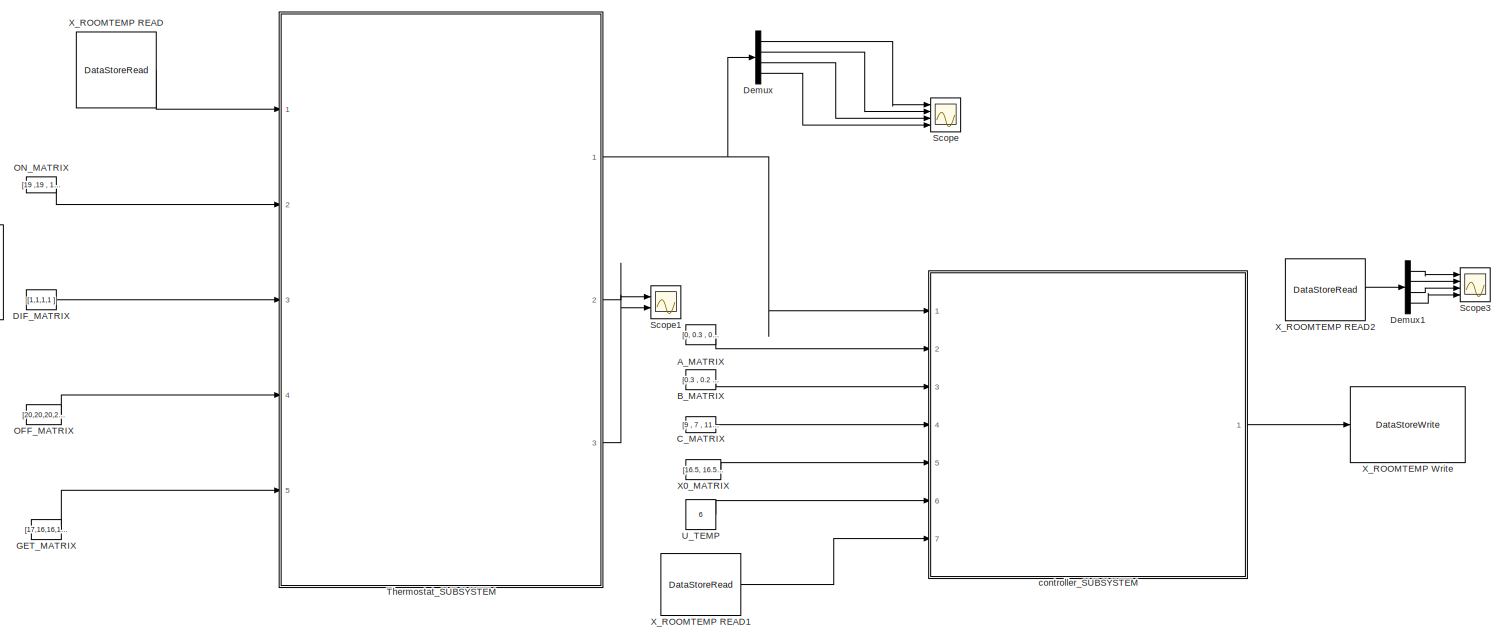
[diagram: root canvas - part 1/2, most of the canvas]
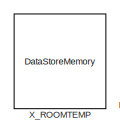
[diagram: root canvas - part 2/2, middle left region]
MODEL slx_b2e7b747065c
KIND model
CONFIG AbsTol = auto
CONFIG EnableMultiTasking = on
CONFIG FixedStep = auto
CONFIG MaxStep = auto
CONFIG MinStep = auto
CONFIG RelTol = 1e-3
CONFIG SampleTimeConstraint = Unconstrained
CONFIG SolverName = FixedStepAuto
CONFIG StartTime = 0.0
CONFIG StopTime = inf
BLOCK [Constant] A_MATRIX
  OutDataTypeStr = int8
  Value = [0, 0.3 , 0.4 , 0.3 ; 0.3 , 0 , 0.5 , 0 ; 0.4 , 0.5 , 0 , 0.3; 0.3 , 0 , 0.3 , 0]
BLOCK [Constant] B_MATRIX
  OutDataTypeStr = int8
  Value = [0.3 , 0.2 , 0.5 , 0.4 ]
BLOCK [Constant] C_MATRIX
  OutDataTypeStr = int8
  Value = [9 , 7 , 11 , 7 ]
BLOCK [Constant] DIF_MATRIX
  OutDataTypeStr = int8
  Value = [1,1,1,1 ]
BLOCK [Demux] Demux
  Ports = [1, 4]
BLOCK [Demux] Demux1
  Ports = [1, 4]
BLOCK [Constant] GET_MATRIX
  OutDataTypeStr = int8
  Value = [17,16,16,17 ]
BLOCK [Constant] OFF_MATRIX
  OutDataTypeStr = uint8
  Value = [20,20,20,20 ]
BLOCK [Constant] ON_MATRIX
  OutDataTypeStr = int8
  Value = [19 ,19 , 19 , 19 ]
BLOCK [Scope] Scope
  Floating = off
  NumInputPorts = 4
  Ports = [4]
  ScopeSpecificationString = Simulink.scopes.TimeScopeBlockCfg('CurrentConfiguration', extmgr.ConfigurationSet(extmgr.Configuration('Core','General UI',true),extmgr.Configuration('Core','Source UI',true),extmgr.Configuration('Sources','WiredSimulink',true),extmgr.Configuration('Visuals','Time Domain',true,'SerializedDisplays',{struct('MinYLimReal','-0.125','MaxYLimReal','1.125','YLabelReal','','MinYLimMag','0.00000','MaxYLimM...<+3442ch>
BLOCK [Scope] Scope1
  Floating = off
  NumInputPorts = 2
  Ports = [2]
  ScopeSpecificationString = Simulink.scopes.TimeScopeBlockCfg('CurrentConfiguration', extmgr.ConfigurationSet(extmgr.Configuration('Core','General UI',true),extmgr.Configuration('Core','Source UI',true),extmgr.Configuration('Sources','WiredSimulink',true,'DataLoggingVariableName','ScopeData1'),extmgr.Configuration('Visuals','Time Domain',true,'SerializedDisplays',{struct('MinYLimReal','0.75','MaxYLimReal','3.25','YLabelReal'...<+2070ch>
BLOCK [Scope] Scope3
  Floating = off
  NumInputPorts = 4
  Ports = [4]
  ScopeSpecificationString = Simulink.scopes.TimeScopeBlockCfg('CurrentConfiguration', extmgr.ConfigurationSet(extmgr.Configuration('Core','General UI',true),extmgr.Configuration('Core','Source UI',true),extmgr.Configuration('Sources','WiredSimulink',true,'DataLoggingVariableName','ScopeData3'),extmgr.Configuration('Visuals','Time Domain',true,'SerializedDisplays',{struct('MinYLimReal','17.57659','MaxYLimReal','20.75942','YLa...<+3537ch>
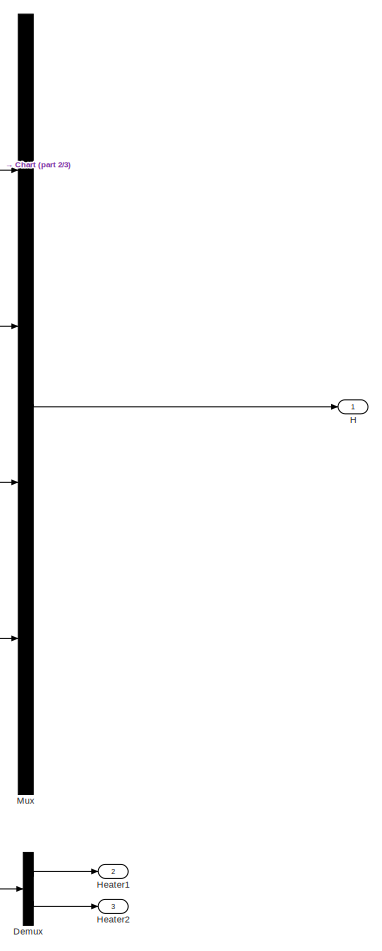
[diagram: Thermostat_SUBSYSTEM - part 1/3, right side, full height]
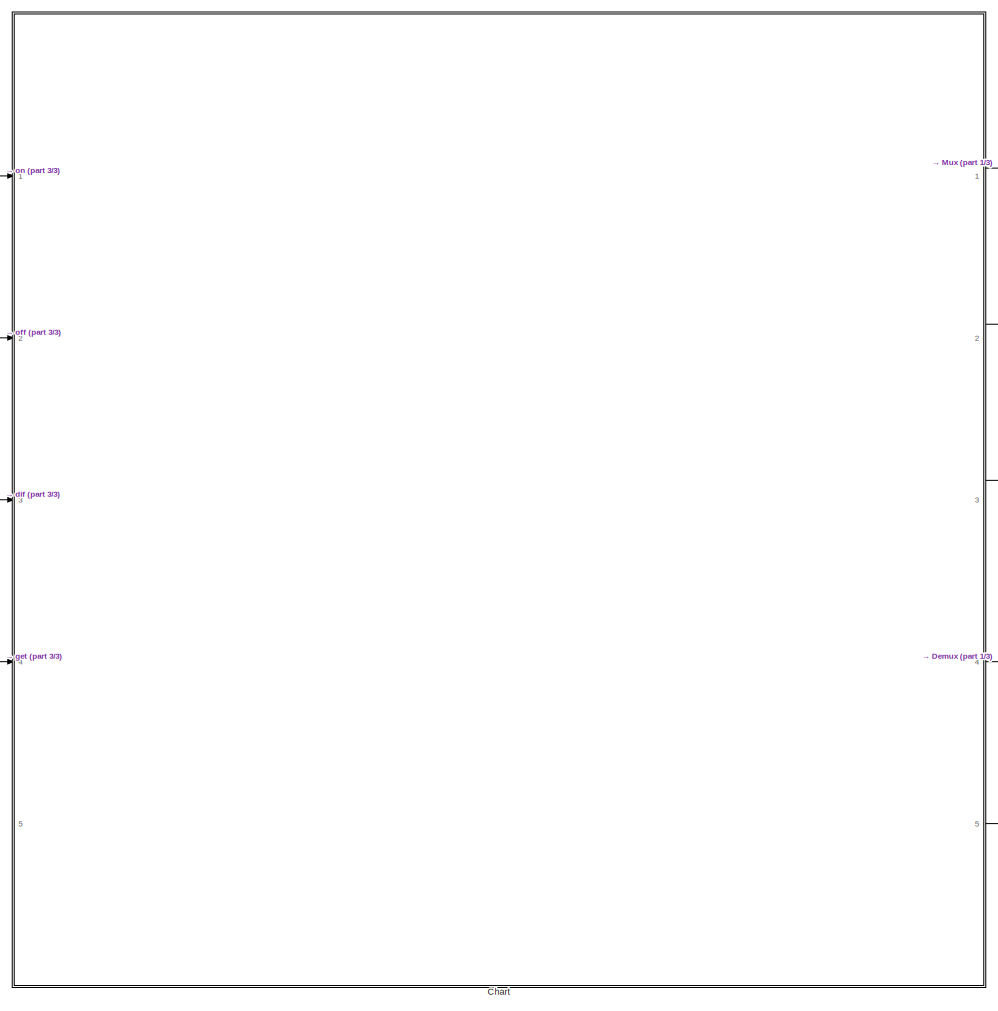
[diagram: Thermostat_SUBSYSTEM - part 2/3, center side, full height]
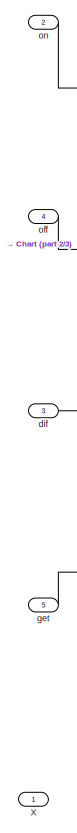
[diagram: Thermostat_SUBSYSTEM - part 3/3, left side, full height]
BLOCK [SubSystem] Thermostat_SUBSYSTEM
  Ports = [5, 3]
  RequestExecContextInheritance = off
  TreatAsAtomicUnit = on
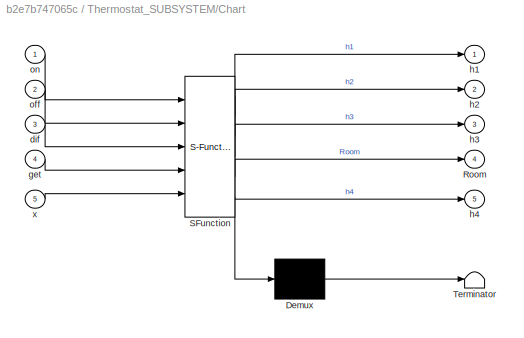
BLOCK [SubSystem] Thermostat_SUBSYSTEM/Chart
  ErrorFcn = Stateflow.Translate.translate
  PermitHierarchicalResolution = ExplicitOnly
  Ports = [5, 5]
  RequestExecContextInheritance = off
  SFBlockType = Chart
  TreatAsAtomicUnit = on
BLOCK [Demux] Thermostat_SUBSYSTEM/Chart/ Demux 
  Outputs = 1
  Ports = [1, 1]
BLOCK [S-Function] Thermostat_SUBSYSTEM/Chart/ SFunction 
  EnableBusSupport = on
  FunctionName = sf_sfun
  PortCounts = [5 6]
  Ports = [5, 6]
  SFcnIsStateOwnerBlock = off
  SFunctionDeploymentMode = off
  Tag = Stateflow S-Function 1
BLOCK [Terminator] Thermostat_SUBSYSTEM/Chart/ Terminator 
BLOCK [Outport] Thermostat_SUBSYSTEM/Chart/Room
  Port = 4
BLOCK [Inport] Thermostat_SUBSYSTEM/Chart/dif
  Port = 3
BLOCK [Inport] Thermostat_SUBSYSTEM/Chart/get
  Port = 4
BLOCK [Outport] Thermostat_SUBSYSTEM/Chart/h1
BLOCK [Outport] Thermostat_SUBSYSTEM/Chart/h2
  Port = 2
BLOCK [Outport] Thermostat_SUBSYSTEM/Chart/h3
  Port = 3
BLOCK [Outport] Thermostat_SUBSYSTEM/Chart/h4
  Port = 5
BLOCK [Inport] Thermostat_SUBSYSTEM/Chart/off
  Port = 2
BLOCK [Inport] Thermostat_SUBSYSTEM/Chart/on
BLOCK [Inport] Thermostat_SUBSYSTEM/Chart/x
  Port = 5
BLOCK [Demux] Thermostat_SUBSYSTEM/Demux
  Outputs = 2
  Ports = [1, 2]
BLOCK [Outport] Thermostat_SUBSYSTEM/H
BLOCK [Outport] Thermostat_SUBSYSTEM/Heater1
  Port = 2
BLOCK [Outport] Thermostat_SUBSYSTEM/Heater2
  Port = 3
BLOCK [Mux] Thermostat_SUBSYSTEM/Mux
  DisplayOption = bar
  Ports = [4, 1]
BLOCK [Inport] Thermostat_SUBSYSTEM/X
BLOCK [Inport] Thermostat_SUBSYSTEM/dif
  Port = 3
BLOCK [Inport] Thermostat_SUBSYSTEM/get
  Port = 5
BLOCK [Inport] Thermostat_SUBSYSTEM/off
  Port = 4
BLOCK [Inport] Thermostat_SUBSYSTEM/on
  Port = 2
BLOCK [Constant] U_TEMP
  OutDataTypeStr = int8
  Value = 6
BLOCK [Constant] X0_MATRIX
  OutDataTypeStr = int8
  Value = [16.5, 16.5,16.5 , 16.5 ]
BLOCK [DataStoreMemory] X_ROOMTEMP
  DataStoreName = X_ROOMTEMP
  InitialValue = [16.5,16.5,16.5,16.5]
  OutDataTypeStr = int8
  ReadBeforeWriteMsg = warning
  ShowAdditionalParam = off
  WriteAfterReadMsg = warning
  WriteAfterWriteMsg = warning
BLOCK [DataStoreRead] X_ROOMTEMP READ
  DataStoreName = X_ROOMTEMP
  IndexOptions = Index vector (dialog)
  Indices = 1
  OutputSizes = 1
  Ports = [0, 1]
BLOCK [DataStoreRead] X_ROOMTEMP READ1
  DataStoreName = X_ROOMTEMP
  IndexOptions = Index vector (dialog)
  Indices = 1
  OutputSizes = 1
  Ports = [0, 1]
BLOCK [DataStoreRead] X_ROOMTEMP READ2
  DataStoreName = X_ROOMTEMP
  IndexOptions = Index vector (dialog)
  Indices = 1
  OutputSizes = 1
  Ports = [0, 1]
BLOCK [DataStoreWrite] X_ROOMTEMP Write
  DataStoreName = X_ROOMTEMP
  IndexOptions = Index vector (dialog)
  Indices = 1
  OutputSizes = 1
  Ports = [1]
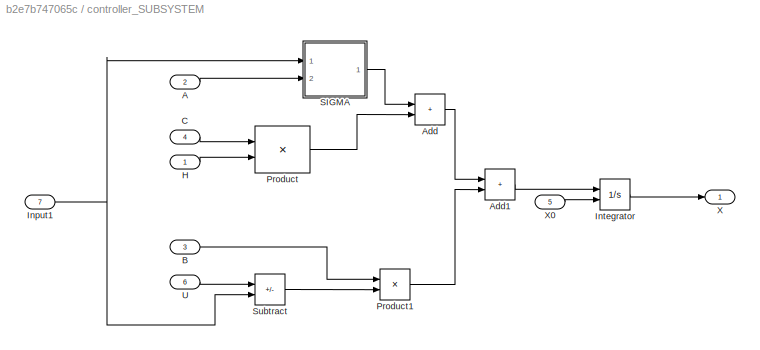
BLOCK [SubSystem] controller_SUBSYSTEM
  Ports = [7, 1]
  RequestExecContextInheritance = off
  TreatAsAtomicUnit = on
BLOCK [Inport] controller_SUBSYSTEM/A
  Port = 2
BLOCK [Sum] controller_SUBSYSTEM/Add
  IconShape = rectangular
  Ports = [2, 1]
BLOCK [Sum] controller_SUBSYSTEM/Add1
  IconShape = rectangular
  Ports = [2, 1]
BLOCK [Inport] controller_SUBSYSTEM/B
  Port = 3
BLOCK [Inport] controller_SUBSYSTEM/C
  Port = 4
BLOCK [Inport] controller_SUBSYSTEM/H
BLOCK [Inport] controller_SUBSYSTEM/Input1
  Port = 7
BLOCK [Integrator] controller_SUBSYSTEM/Integrator
  InitialConditionSource = external
  Ports = [2, 1]
BLOCK [Product] controller_SUBSYSTEM/Product
  Ports = [2, 1]
BLOCK [Product] controller_SUBSYSTEM/Product1
  Ports = [2, 1]
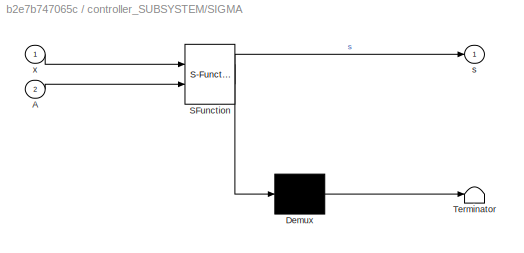
BLOCK [SubSystem] controller_SUBSYSTEM/SIGMA
  ErrorFcn = Stateflow.Translate.translate
  PermitHierarchicalResolution = ExplicitOnly
  Ports = [2, 1]
  RequestExecContextInheritance = off
  SFBlockType = Chart
  TreatAsAtomicUnit = on
BLOCK [Demux] controller_SUBSYSTEM/SIGMA/ Demux 
  Outputs = 1
  Ports = [1, 1]
BLOCK [S-Function] controller_SUBSYSTEM/SIGMA/ SFunction 
  EnableBusSupport = on
  FunctionName = sf_sfun
  PortCounts = [2 2]
  Ports = [2, 2]
  SFcnIsStateOwnerBlock = off
  SFunctionDeploymentMode = off
  Tag = Stateflow S-Function 3
BLOCK [Terminator] controller_SUBSYSTEM/SIGMA/ Terminator 
BLOCK [Inport] controller_SUBSYSTEM/SIGMA/A
  Port = 2
BLOCK [Outport] controller_SUBSYSTEM/SIGMA/s
BLOCK [Inport] controller_SUBSYSTEM/SIGMA/x
BLOCK [Sum] controller_SUBSYSTEM/Subtract
  IconShape = rectangular
  Inputs = +-
  Ports = [2, 1]
BLOCK [Inport] controller_SUBSYSTEM/U
  Port = 6
BLOCK [Outport] controller_SUBSYSTEM/X
BLOCK [Inport] controller_SUBSYSTEM/X0
  Port = 5
LINE A_MATRIX:1 -> controller_SUBSYSTEM:2
LINE B_MATRIX:1 -> controller_SUBSYSTEM:3
LINE C_MATRIX:1 -> controller_SUBSYSTEM:4
LINE DIF_MATRIX:1 -> Thermostat_SUBSYSTEM:3
LINE Demux1:1 -> Scope3:1
LINE Demux1:2 -> Scope3:2
LINE Demux1:3 -> Scope3:3
LINE Demux1:4 -> Scope3:4
LINE Demux:1 -> Scope:1
LINE Demux:2 -> Scope:2
LINE Demux:3 -> Scope:3
LINE Demux:4 -> Scope:4
LINE GET_MATRIX:1 -> Thermostat_SUBSYSTEM:5
LINE OFF_MATRIX:1 -> Thermostat_SUBSYSTEM:4
LINE ON_MATRIX:1 -> Thermostat_SUBSYSTEM:2
LINE Thermostat_SUBSYSTEM/Chart:1 -> Thermostat_SUBSYSTEM/Mux:1
LINE Thermostat_SUBSYSTEM/Chart:2 -> Thermostat_SUBSYSTEM/Mux:2
LINE Thermostat_SUBSYSTEM/Chart:3 -> Thermostat_SUBSYSTEM/Mux:3
LINE Thermostat_SUBSYSTEM/Chart:4 -> Thermostat_SUBSYSTEM/Demux:1
LINE Thermostat_SUBSYSTEM/Chart:5 -> Thermostat_SUBSYSTEM/Mux:4
LINE Thermostat_SUBSYSTEM/Demux:1 -> Thermostat_SUBSYSTEM/Heater1:1
LINE Thermostat_SUBSYSTEM/Demux:2 -> Thermostat_SUBSYSTEM/Heater2:1
LINE Thermostat_SUBSYSTEM/Mux:1 -> Thermostat_SUBSYSTEM/H:1
LINE Thermostat_SUBSYSTEM/dif:1 -> Thermostat_SUBSYSTEM/Chart:3
LINE Thermostat_SUBSYSTEM/get:1 -> Thermostat_SUBSYSTEM/Chart:4
LINE Thermostat_SUBSYSTEM/off:1 -> Thermostat_SUBSYSTEM/Chart:2
LINE Thermostat_SUBSYSTEM/on:1 -> Thermostat_SUBSYSTEM/Chart:1
NET Thermostat_SUBSYSTEM:1 -> Demux:1, controller_SUBSYSTEM:1
LINE Thermostat_SUBSYSTEM:2 -> Scope1:1
LINE Thermostat_SUBSYSTEM:3 -> Scope1:2
LINE U_TEMP:1 -> controller_SUBSYSTEM:6
LINE X0_MATRIX:1 -> controller_SUBSYSTEM:5
LINE X_ROOMTEMP READ1:1 -> controller_SUBSYSTEM:7
LINE X_ROOMTEMP READ2:1 -> Demux1:1
LINE X_ROOMTEMP READ:1 -> Thermostat_SUBSYSTEM:1
LINE controller_SUBSYSTEM/A:1 -> controller_SUBSYSTEM/SIGMA:2
LINE controller_SUBSYSTEM/Add1:1 -> controller_SUBSYSTEM/Integrator:1
LINE controller_SUBSYSTEM/Add:1 -> controller_SUBSYSTEM/Add1:1
LINE controller_SUBSYSTEM/B:1 -> controller_SUBSYSTEM/Product1:1
LINE controller_SUBSYSTEM/C:1 -> controller_SUBSYSTEM/Product:1
LINE controller_SUBSYSTEM/H:1 -> controller_SUBSYSTEM/Product:2
NET controller_SUBSYSTEM/Input1:1 -> controller_SUBSYSTEM/SIGMA:1, controller_SUBSYSTEM/Subtract:2
LINE controller_SUBSYSTEM/Integrator:1 -> controller_SUBSYSTEM/X:1
LINE controller_SUBSYSTEM/Product1:1 -> controller_SUBSYSTEM/Add1:2
LINE controller_SUBSYSTEM/Product:1 -> controller_SUBSYSTEM/Add:2
LINE controller_SUBSYSTEM/SIGMA:1 -> controller_SUBSYSTEM/Add:1
LINE controller_SUBSYSTEM/Subtract:1 -> controller_SUBSYSTEM/Product1:2
LINE controller_SUBSYSTEM/U:1 -> controller_SUBSYSTEM/Subtract:1
LINE controller_SUBSYSTEM/X0:1 -> controller_SUBSYSTEM/Integrator:2
LINE controller_SUBSYSTEM:1 -> X_ROOMTEMP Write:1
note: NET lines group one-source signal fan-out (src -> all destinations, sorted); 1:1 wires keep LINE
CHART Thermostat_SUBSYSTEM/Chart states=43 transitions=62
  STATE_LABEL 'st13\nentry:\n  h2 = 0;\n  h4 = 0;\n  Room=[1,3];'
  STATE_LABEL 's1'
  STATE_LABEL 's1_on\nentry:\n  h1 = 1'
  STATE_LABEL 's1_off\nentry:\n  h1 = 0'
  STATE_LABEL '[x(1)>=off(1)]'
  STATE_LABEL '[x(1)<=on(1)]'
  STATE_LABEL 's3'
  STATE_LABEL 's3_on\nentry:\n  h3 = 1'
  STATE_LABEL 's3_off\nentry:\n  h3 = 0'
  STATE_LABEL '[x(3)>=off(3)]'
  STATE_LABEL '[x(3)<=on(3)]'
  STATE_LABEL 's1'
  STATE_LABEL 's1_on\nentry:\n  h1 = 1'
  STATE_LABEL 's1_off\nentry:\n  h1 = 0'
  STATE_LABEL '[x(1)>=off(1)]'
  STATE_LABEL '[x(1)<=on(1)]'
  STATE_LABEL 's1_on\nentry:\n  h1 = 1'
  STATE_LABEL 's1_off\nentry:\n  h1 = 0'
  STATE_LABEL 's3'
  STATE_LABEL 's3_on\nentry:\n  h3 = 1'
  STATE_LABEL 's3_off\nentry:\n  h3 = 0'
  STATE_LABEL '[x(3)>=off(3)]'
  STATE_LABEL '[x(3)<=on(3)]'
  STATE_LABEL 's3_on\nentry:\n  h3 = 1'
  STATE_LABEL 's3_off\nentry:\n  h3 = 0'
  STATE_LABEL 'st14\nentry:\n  h2 = 0;\n  h3 = 0;\n  Room=[1,4];\n'
  STATE_LABEL 's1'
  STATE_LABEL 's1_on\nentry:\n  h1 = 1'
  STATE_LABEL 's1_off\nentry:\n  h1 = 0'
  STATE_LABEL '[x(1)>=off(1)]'
  STATE_LABEL '[x(1)<=on(1)]'
  STATE_LABEL 's4'
  STATE_LABEL 's4_on\nentry:\n  h4 = 1'
  STATE_LABEL 's4_off\nentry:\n  h4 = 0'
  STATE_LABEL '[x(4)>=off(4)]'
  STATE_LABEL '[x(4)<=on(4)]'
  STATE_LABEL 's1'
  STATE_LABEL 's1_on\nentry:\n  h1 = 1'
  STATE_LABEL 's1_off\nentry:\n  h1 = 0'
  STATE_LABEL '[x(1)>=off(1)]'
CHART controller_SUBSYSTEM/SIGMA states=1 transitions=1
  STATE_LABEL 's3\ndu:\n s(1) = A(1,2)*(x(2)-x(1)) + A(1,3)*(x(3)-x(1)) + A(1,4)*(x(4)-x(1));\n s(2) = A(2,1)*(x(1)-x(2)) + A(2,3)*(x(3)-x(2)) + A(2,4)*(x(4)-x(2));\n s(3) = A(3,1)*(x(1)-x(3)) + A(3,2)*(x(2)-x(3)) + A(3,4)*(x(4)-x(3));\n s(4) = A(4,1)*(x(1)-x(4)) + A(4,2)*(x(2)-x(4)) + A(4,3)*(x(3)-x(4));\n'
CHART  states=0 transitions=0
CHART  states=0 transitions=0
